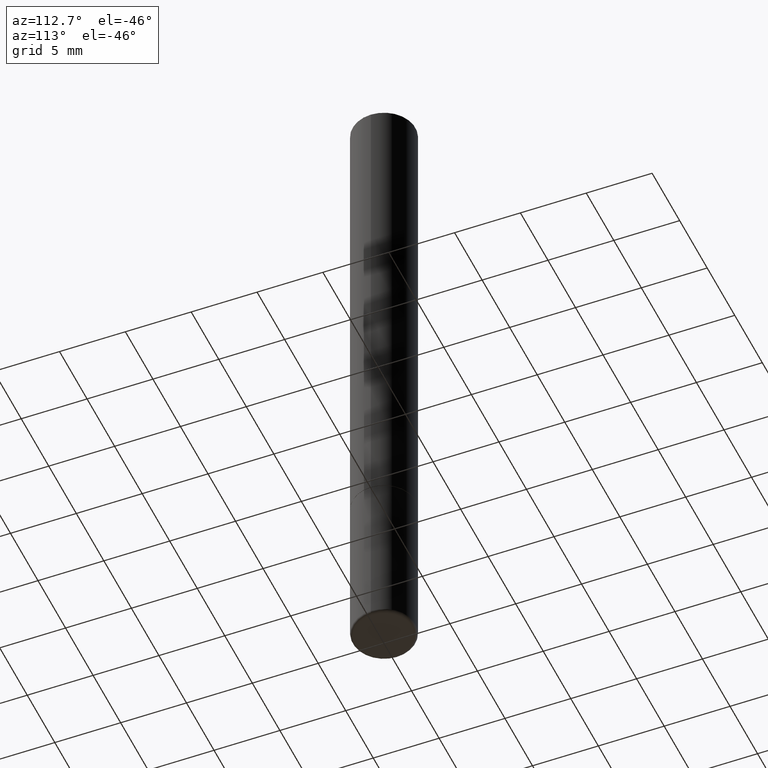
[diagram: clean part render]
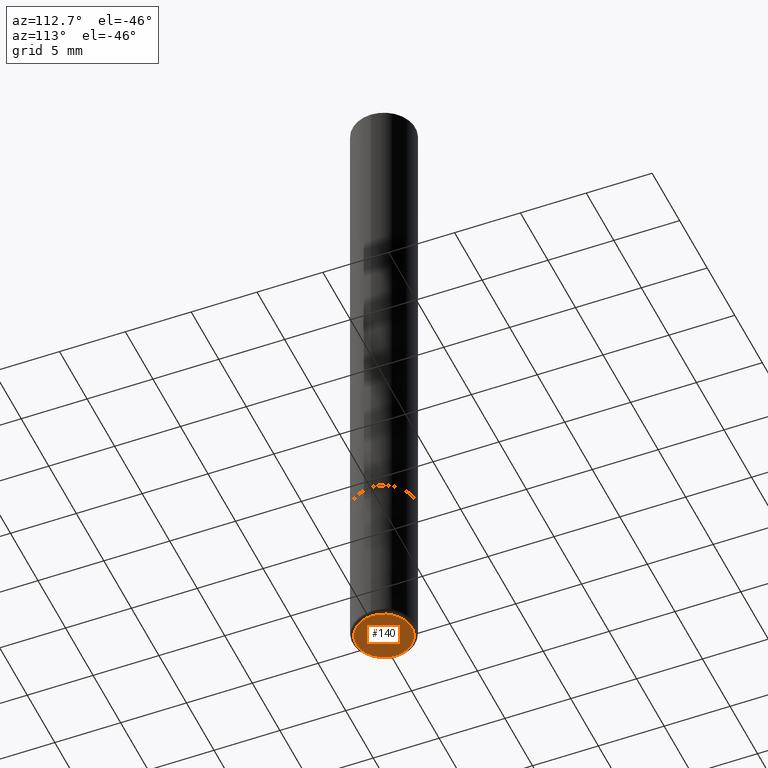
[diagram: same view with one face highlighted and labeled with its STEP entity id]
A machine part, auxiliary view. The second image highlights one B-rep face of the part: STEP entity #140.
In plain terms, the highlighted planar face has unit normal (0, -0, -1).
Its self-contained STEP definition (entity closure, byte-faithful):
#3 = ORIENTED_EDGE ( 'NONE', *, *, #60, .F. ) ;
#42 = DIRECTION ( 'NONE',  ( 1.000000000000000000, -6.982962677686265922E-15, 0.000000000000000000 ) ) ;
#47 = AXIS2_PLACEMENT_3D ( 'NONE', #87, #382, #181 ) ;
#60 = EDGE_CURVE ( 'NONE', #361, #290, #77, .T. ) ;
#77 = CIRCLE ( 'NONE', #219, 0.08375000000000000500 ) ;
#87 = CARTESIAN_POINT ( 'NONE',  ( 4.890937612370273194E-29, -6.982962677686291165E-15, -2.000000000000000000 ) ) ;
#99 = ORIENTED_EDGE ( 'NONE', *, *, #119, .F. ) ;
#119 = EDGE_CURVE ( 'NONE', #290, #361, #239, .T. ) ;
#120 = CARTESIAN_POINT ( 'NONE',  ( 4.890937612370273194E-29, -6.982962677686291165E-15, -2.000000000000000000 ) ) ;
#122 = PLANE ( 'NONE',  #155 ) ;
#140 = ADVANCED_FACE ( 'NONE', ( #148 ), #122, .T. ) ;
#148 = FACE_OUTER_BOUND ( 'NONE', #165, .T. ) ;
#155 = AXIS2_PLACEMENT_3D ( 'NONE', #120, #210, #268 ) ;
#165 = EDGE_LOOP ( 'NONE', ( #99, #3 ) ) ;
#181 = DIRECTION ( 'NONE',  ( 1.000000000000000000, -6.982962677686265922E-15, 0.000000000000000000 ) ) ;
#197 = CARTESIAN_POINT ( 'NONE',  ( 4.890937612370273194E-29, -6.982962677686291165E-15, -2.000000000000000000 ) ) ;
#210 = DIRECTION ( 'NONE',  ( 2.438088387897960049E-29, -3.491481338843145188E-15, -1.000000000000000000 ) ) ;
#219 = AXIS2_PLACEMENT_3D ( 'NONE', #197, #328, #42 ) ;
#237 = CARTESIAN_POINT ( 'NONE',  ( -0.08375000000000000500, -6.334898593004988035E-15, -2.000000000000000000 ) ) ;
#239 = CIRCLE ( 'NONE', #47, 0.08375000000000000500 ) ;
#268 = DIRECTION ( 'NONE',  ( -1.000000000000000000, 6.982962677686265922E-15, -4.876176775795935793E-29 ) ) ;
#290 = VERTEX_POINT ( 'NONE', #402 ) ;
#328 = DIRECTION ( 'NONE',  ( -2.445468806185136597E-29, 3.491481338843145583E-15, 1.000000000000000000 ) ) ;
#361 = VERTEX_POINT ( 'NONE', #237 ) ;
#382 = DIRECTION ( 'NONE',  ( -2.445468806185136597E-29, 3.491481338843145583E-15, 1.000000000000000000 ) ) ;
#402 = CARTESIAN_POINT ( 'NONE',  ( 0.08375000000000000500, -7.567785801942515371E-15, -2.000000000000000000 ) ) ;